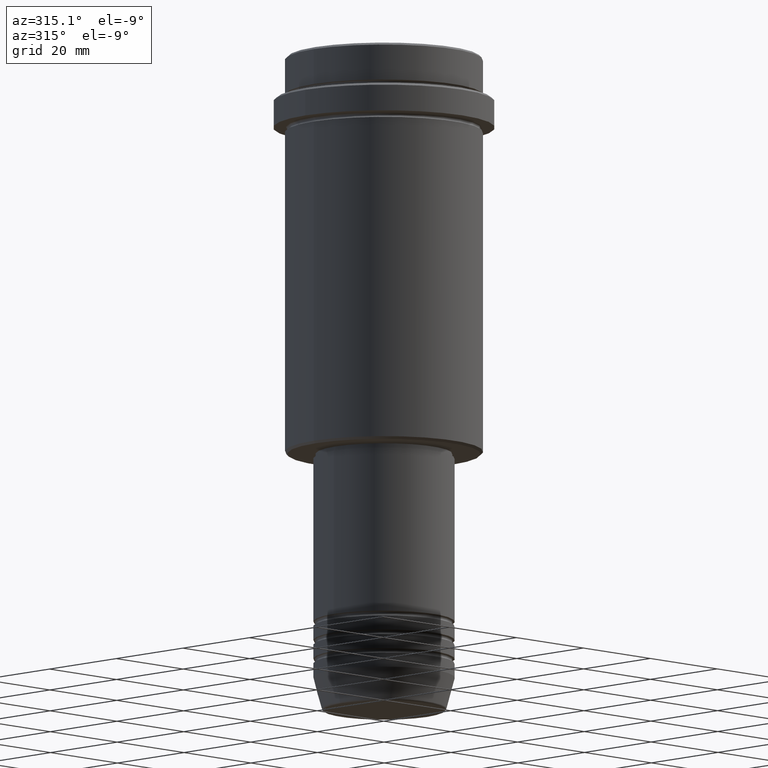
[diagram: clean part render]
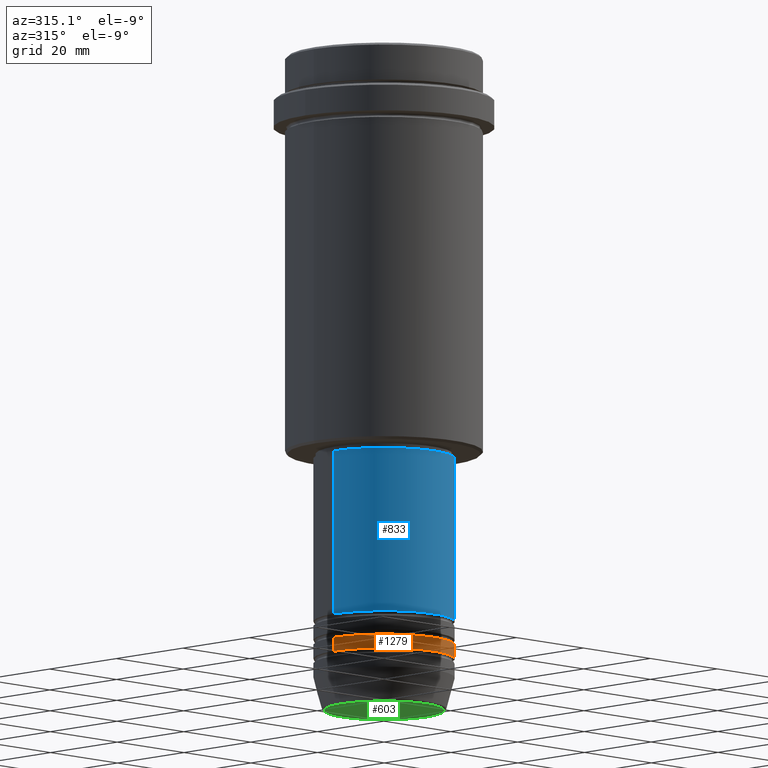
[diagram: same view with three faces highlighted in distinct colors, each labeled with its STEP entity id]
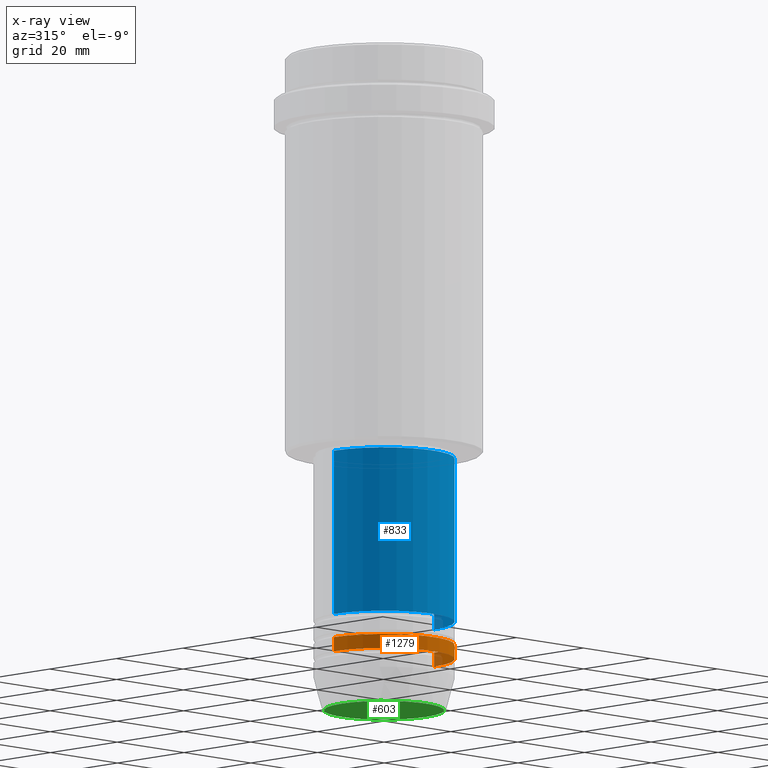
[diagram: x-ray of the same camera — body ghosted, the three highlighted faces saturated]
A machine part, auxiliary view with three faces highlighted in distinct colors.
The next image is the same camera in x-ray (body ghosted, the three faces saturated) — at least one of them is partly hidden behind the body in this view.
Their STEP definitions:

[orange] entity #1279 — the highlighted cylindrical surface (partial cylindrical patch) has radius 15 mm, axis along (-0, -0, 1).
#50 = DIRECTION ( 'NONE',  ( -0.000000000000000000, -0.000000000000000000, 1.000000000000000000 ) ) ;
#87 = DIRECTION ( 'NONE',  ( 1.000000000000000000, 0.000000000000000000, 0.000000000000000000 ) ) ;
#221 = ORIENTED_EDGE ( 'NONE', *, *, #436, .T. ) ;
#316 = ORIENTED_EDGE ( 'NONE', *, *, #1249, .T. ) ;
#424 = LINE ( 'NONE', #859, #728 ) ;
#432 = CIRCLE ( 'NONE', #637, 15.00000000000000000 ) ;
#436 = EDGE_CURVE ( 'NONE', #1247, #438, #936, .T. ) ;
#438 = VERTEX_POINT ( 'NONE', #1176 ) ;
#456 = VECTOR ( 'NONE', #50, 1000.000000000000000 ) ;
#491 = CARTESIAN_POINT ( 'NONE',  ( 15.00000000000000000, 0.000000000000000000, -125.9999999999998863 ) ) ;
#494 = EDGE_LOOP ( 'NONE', ( #773, #221, #316, #801 ) ) ;
#533 = DIRECTION ( 'NONE',  ( -0.000000000000000000, -0.000000000000000000, 1.000000000000000000 ) ) ;
#567 = AXIS2_PLACEMENT_3D ( 'NONE', #1083, #959, #753 ) ;
#632 = VERTEX_POINT ( 'NONE', #1244 ) ;
#637 = AXIS2_PLACEMENT_3D ( 'NONE', #1066, #533, #87 ) ;
#669 = FACE_OUTER_BOUND ( 'NONE', #494, .T. ) ;
#683 = VERTEX_POINT ( 'NONE', #491 ) ;
#728 = VECTOR ( 'NONE', #982, 1000.000000000000000 ) ;
#740 = CARTESIAN_POINT ( 'NONE',  ( 15.00000000000000000, 0.000000000000000000, 0.000000000000000000 ) ) ;
#746 = DIRECTION ( 'NONE',  ( 1.000000000000000000, 0.000000000000000000, 0.000000000000000000 ) ) ;
#753 = DIRECTION ( 'NONE',  ( 1.000000000000000000, 0.000000000000000000, 0.000000000000000000 ) ) ;
#773 = ORIENTED_EDGE ( 'NONE', *, *, #1348, .F. ) ;
#801 = ORIENTED_EDGE ( 'NONE', *, *, #1338, .F. ) ;
#857 = CARTESIAN_POINT ( 'NONE',  ( 0.000000000000000000, 0.000000000000000000, -128.9999999999998863 ) ) ;
#859 = CARTESIAN_POINT ( 'NONE',  ( -15.00000000000000000, 1.836970198721029589E-15, 0.000000000000000000 ) ) ;
#891 = AXIS2_PLACEMENT_3D ( 'NONE', #857, #1080, #746 ) ;
#936 = CIRCLE ( 'NONE', #891, 15.00000000000000000 ) ;
#952 = CYLINDRICAL_SURFACE ( 'NONE', #567, 15.00000000000000000 ) ;
#959 = DIRECTION ( 'NONE',  ( -0.000000000000000000, -0.000000000000000000, 1.000000000000000000 ) ) ;
#982 = DIRECTION ( 'NONE',  ( -0.000000000000000000, -0.000000000000000000, 1.000000000000000000 ) ) ;
#1040 = LINE ( 'NONE', #740, #456 ) ;
#1066 = CARTESIAN_POINT ( 'NONE',  ( 0.000000000000000000, 0.000000000000000000, -125.9999999999998863 ) ) ;
#1080 = DIRECTION ( 'NONE',  ( -0.000000000000000000, -0.000000000000000000, 1.000000000000000000 ) ) ;
#1083 = CARTESIAN_POINT ( 'NONE',  ( 0.000000000000000000, 0.000000000000000000, 0.000000000000000000 ) ) ;
#1176 = CARTESIAN_POINT ( 'NONE',  ( 15.00000000000000000, 0.000000000000000000, -128.9999999999998863 ) ) ;
#1244 = CARTESIAN_POINT ( 'NONE',  ( -15.00000000000000000, 1.836970198721029589E-15, -125.9999999999998863 ) ) ;
#1247 = VERTEX_POINT ( 'NONE', #1281 ) ;
#1249 = EDGE_CURVE ( 'NONE', #438, #683, #1040, .T. ) ;
#1279 = ADVANCED_FACE ( 'NONE', ( #669 ), #952, .T. ) ;
#1281 = CARTESIAN_POINT ( 'NONE',  ( -15.00000000000000000, 1.836970198721029589E-15, -128.9999999999998863 ) ) ;
#1338 = EDGE_CURVE ( 'NONE', #632, #683, #432, .T. ) ;
#1348 = EDGE_CURVE ( 'NONE', #1247, #632, #424, .T. ) ;

[blue] entity #833 — the highlighted cylindrical surface (partial cylindrical patch) has radius 15 mm, axis along (-0, -0, 1).
#16 = EDGE_LOOP ( 'NONE', ( #62, #684, #1082, #1299 ) ) ;
#62 = ORIENTED_EDGE ( 'NONE', *, *, #692, .F. ) ;
#81 = AXIS2_PLACEMENT_3D ( 'NONE', #731, #497, #929 ) ;
#83 = CARTESIAN_POINT ( 'NONE',  ( 15.00000000000000000, 0.000000000000000000, -120.9999999999999005 ) ) ;
#113 = DIRECTION ( 'NONE',  ( -0.000000000000000000, -0.000000000000000000, 1.000000000000000000 ) ) ;
#132 = VERTEX_POINT ( 'NONE', #261 ) ;
#160 = VERTEX_POINT ( 'NONE', #1229 ) ;
#240 = VECTOR ( 'NONE', #1227, 1000.000000000000000 ) ;
#261 = CARTESIAN_POINT ( 'NONE',  ( -15.00000000000000000, 1.836970198721029589E-15, -86.00000000000001421 ) ) ;
#287 = DIRECTION ( 'NONE',  ( -0.000000000000000000, -0.000000000000000000, 1.000000000000000000 ) ) ;
#418 = CYLINDRICAL_SURFACE ( 'NONE', #1310, 15.00000000000000000 ) ;
#440 = VERTEX_POINT ( 'NONE', #644 ) ;
#452 = AXIS2_PLACEMENT_3D ( 'NONE', #823, #1373, #511 ) ;
#487 = CARTESIAN_POINT ( 'NONE',  ( -15.00000000000000000, 1.836970198721029589E-15, 0.000000000000000000 ) ) ;
#497 = DIRECTION ( 'NONE',  ( -0.000000000000000000, -0.000000000000000000, 1.000000000000000000 ) ) ;
#511 = DIRECTION ( 'NONE',  ( 1.000000000000000000, 0.000000000000000000, 0.000000000000000000 ) ) ;
#580 = LINE ( 'NONE', #1003, #1166 ) ;
#642 = CARTESIAN_POINT ( 'NONE',  ( 0.000000000000000000, 0.000000000000000000, 0.000000000000000000 ) ) ;
#644 = CARTESIAN_POINT ( 'NONE',  ( 15.00000000000000000, 0.000000000000000000, -86.00000000000001421 ) ) ;
#681 = CIRCLE ( 'NONE', #81, 15.00000000000000000 ) ;
#684 = ORIENTED_EDGE ( 'NONE', *, *, #1222, .T. ) ;
#685 = EDGE_CURVE ( 'NONE', #793, #440, #580, .T. ) ;
#692 = EDGE_CURVE ( 'NONE', #160, #132, #1203, .T. ) ;
#731 = CARTESIAN_POINT ( 'NONE',  ( 0.000000000000000000, 0.000000000000000000, -120.9999999999999005 ) ) ;
#754 = EDGE_CURVE ( 'NONE', #132, #440, #1146, .T. ) ;
#793 = VERTEX_POINT ( 'NONE', #83 ) ;
#823 = CARTESIAN_POINT ( 'NONE',  ( 0.000000000000000000, 0.000000000000000000, -86.00000000000001421 ) ) ;
#833 = ADVANCED_FACE ( 'NONE', ( #1155 ), #418, .T. ) ;
#929 = DIRECTION ( 'NONE',  ( 1.000000000000000000, 0.000000000000000000, 0.000000000000000000 ) ) ;
#1003 = CARTESIAN_POINT ( 'NONE',  ( 15.00000000000000000, 0.000000000000000000, 0.000000000000000000 ) ) ;
#1082 = ORIENTED_EDGE ( 'NONE', *, *, #685, .T. ) ;
#1146 = CIRCLE ( 'NONE', #452, 15.00000000000000000 ) ;
#1155 = FACE_OUTER_BOUND ( 'NONE', #16, .T. ) ;
#1166 = VECTOR ( 'NONE', #113, 1000.000000000000000 ) ;
#1203 = LINE ( 'NONE', #487, #240 ) ;
#1222 = EDGE_CURVE ( 'NONE', #160, #793, #681, .T. ) ;
#1227 = DIRECTION ( 'NONE',  ( -0.000000000000000000, -0.000000000000000000, 1.000000000000000000 ) ) ;
#1229 = CARTESIAN_POINT ( 'NONE',  ( -15.00000000000000000, 1.836970198721029589E-15, -120.9999999999999005 ) ) ;
#1276 = DIRECTION ( 'NONE',  ( 1.000000000000000000, 0.000000000000000000, 0.000000000000000000 ) ) ;
#1299 = ORIENTED_EDGE ( 'NONE', *, *, #754, .F. ) ;
#1310 = AXIS2_PLACEMENT_3D ( 'NONE', #642, #287, #1276 ) ;
#1373 = DIRECTION ( 'NONE',  ( -0.000000000000000000, -0.000000000000000000, 1.000000000000000000 ) ) ;

[green] entity #603 — the highlighted planar face has unit normal (0, -0, 1).
#29 = AXIS2_PLACEMENT_3D ( 'NONE', #1198, #911, #39 ) ;
#39 = DIRECTION ( 'NONE',  ( 1.000000000000000000, 0.000000000000000000, 0.000000000000000000 ) ) ;
#73 = EDGE_CURVE ( 'NONE', #885, #821, #1260, .T. ) ;
#194 = CIRCLE ( 'NONE', #1240, 12.74069215899265828 ) ;
#208 = DIRECTION ( 'NONE',  ( 0.000000000000000000, 0.000000000000000000, -1.000000000000000000 ) ) ;
#280 = CARTESIAN_POINT ( 'NONE',  ( -12.74069215899265828, 1.589857736427681035E-15, -140.0000000000000000 ) ) ;
#425 = EDGE_LOOP ( 'NONE', ( #965, #526 ) ) ;
#446 = DIRECTION ( 'NONE',  ( 0.000000000000000000, 0.000000000000000000, -1.000000000000000000 ) ) ;
#526 = ORIENTED_EDGE ( 'NONE', *, *, #1305, .T. ) ;
#603 = ADVANCED_FACE ( 'NONE', ( #1126 ), #1011, .F. ) ;
#639 = CARTESIAN_POINT ( 'NONE',  ( 0.000000000000000000, 0.000000000000000000, -140.0000000000000000 ) ) ;
#821 = VERTEX_POINT ( 'NONE', #280 ) ;
#880 = CARTESIAN_POINT ( 'NONE',  ( 0.000000000000000000, 0.000000000000000000, -140.0000000000000000 ) ) ;
#885 = VERTEX_POINT ( 'NONE', #1179 ) ;
#911 = DIRECTION ( 'NONE',  ( 0.000000000000000000, -0.000000000000000000, 1.000000000000000000 ) ) ;
#965 = ORIENTED_EDGE ( 'NONE', *, *, #73, .T. ) ;
#1002 = AXIS2_PLACEMENT_3D ( 'NONE', #639, #446, #1308 ) ;
#1011 = PLANE ( 'NONE',  #29 ) ;
#1126 = FACE_OUTER_BOUND ( 'NONE', #425, .T. ) ;
#1179 = CARTESIAN_POINT ( 'NONE',  ( 12.74069215899265828, 0.000000000000000000, -140.0000000000000000 ) ) ;
#1198 = CARTESIAN_POINT ( 'NONE',  ( 0.000000000000000000, 0.000000000000000000, -140.0000000000000000 ) ) ;
#1240 = AXIS2_PLACEMENT_3D ( 'NONE', #880, #208, #1401 ) ;
#1260 = CIRCLE ( 'NONE', #1002, 12.74069215899265828 ) ;
#1305 = EDGE_CURVE ( 'NONE', #821, #885, #194, .T. ) ;
#1308 = DIRECTION ( 'NONE',  ( 1.000000000000000000, 0.000000000000000000, 0.000000000000000000 ) ) ;
#1401 = DIRECTION ( 'NONE',  ( 1.000000000000000000, 0.000000000000000000, 0.000000000000000000 ) ) ;